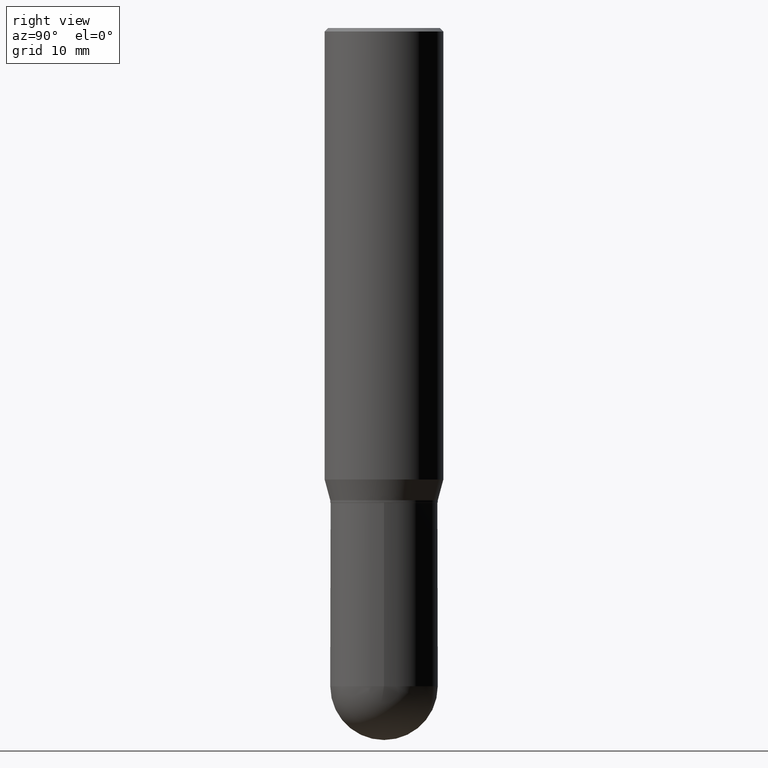
[diagram: clean part render]
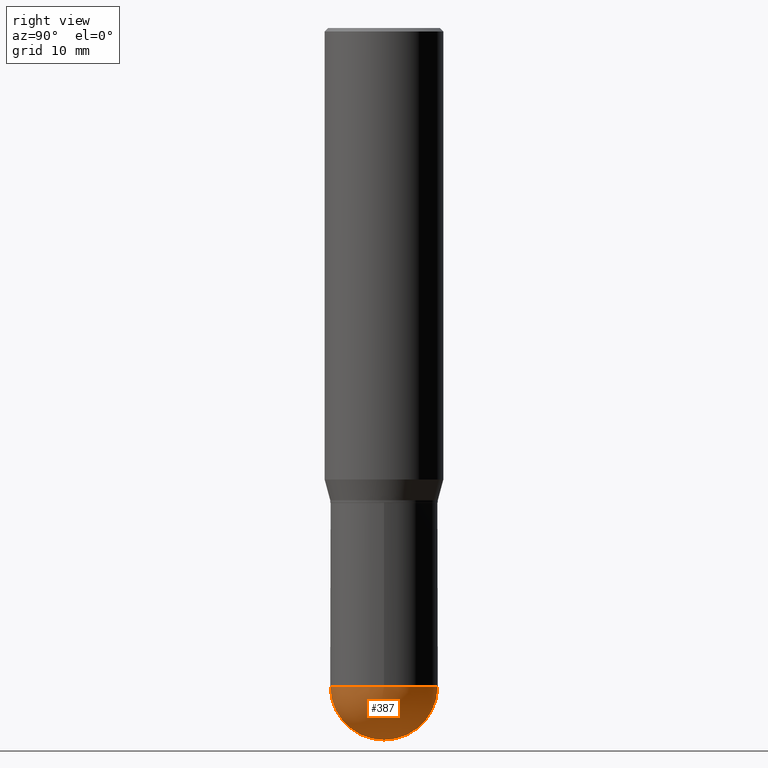
[diagram: same view with one face highlighted and labeled with its STEP entity id]
A machine part, right view. The second image highlights one B-rep face of the part: STEP entity #387.
In plain terms, the highlighted spherical surface has radius 5.7544 mm.
Its self-contained STEP definition (entity closure, byte-faithful):
#1 = CARTESIAN_POINT ( 'NONE',  ( 1.581990194629891371E-15, 0.2265499999999903147, -2.773450000000000859 ) ) ;
#2 = AXIS2_PLACEMENT_3D ( 'NONE', #154, #24, #275 ) ;
#16 = CARTESIAN_POINT ( 'NONE',  ( -1.609734567864438547E-15, -0.2265500000000096603, -2.773449999999999971 ) ) ;
#24 = DIRECTION ( 'NONE',  ( -2.445468806185136597E-29, 3.491481338843145583E-15, 1.000000000000000000 ) ) ;
#27 = CIRCLE ( 'NONE', #239, 0.2265500000000000291 ) ;
#39 = AXIS2_PLACEMENT_3D ( 'NONE', #82, #508, #164 ) ;
#40 = DIRECTION ( 'NONE',  ( 1.000000000000000000, -6.982962677686266711E-15, 0.000000000000000000 ) ) ;
#44 = DIRECTION ( 'NONE',  ( 6.982962677686265922E-15, 1.000000000000000000, -2.411695425878847213E-15 ) ) ;
#62 = ORIENTED_EDGE ( 'NONE', *, *, #198, .F. ) ;
#67 = DIRECTION ( 'NONE',  ( -1.000000000000000000, 6.982962677686265922E-15, -4.883557194083112901E-29 ) ) ;
#82 = CARTESIAN_POINT ( 'NONE',  ( 6.784390825462294501E-29, -9.680577122470524352E-15, -2.773450000000000415 ) ) ;
#115 = CARTESIAN_POINT ( 'NONE',  ( 6.784390825462294501E-29, -9.680577122470524352E-15, -2.773450000000000415 ) ) ;
#120 = ORIENTED_EDGE ( 'NONE', *, *, #248, .F. ) ;
#129 = CARTESIAN_POINT ( 'NONE',  ( 6.784390825462294501E-29, -9.680577122470524352E-15, -2.773450000000000415 ) ) ;
#154 = CARTESIAN_POINT ( 'NONE',  ( 6.782385460514168389E-29, -9.683448919214523504E-15, -2.773450000000000415 ) ) ;
#162 = VERTEX_POINT ( 'NONE', #16 ) ;
#164 = DIRECTION ( 'NONE',  ( -7.105427357601000281E-15, -1.000000000000000000, 0.000000000000000000 ) ) ;
#165 = DIRECTION ( 'NONE',  ( -2.445468806185136597E-29, 3.491481338843145583E-15, 1.000000000000000000 ) ) ;
#173 = CIRCLE ( 'NONE', #2, 0.2265500000000000291 ) ;
#175 = DIRECTION ( 'NONE',  ( 1.000000000000000000, -6.982962677686265922E-15, 4.883557194083112340E-29 ) ) ;
#198 = EDGE_CURVE ( 'NONE', #405, #385, #27, .T. ) ;
#204 = CARTESIAN_POINT ( 'NONE',  ( 0.2265500000000000291, -9.915195993080232639E-15, -2.773450000000000415 ) ) ;
#236 = CARTESIAN_POINT ( 'NONE',  ( 7.348098679644216605E-29, -1.045770003316809804E-14, -3.000000000000000444 ) ) ;
#239 = AXIS2_PLACEMENT_3D ( 'NONE', #346, #165, #40 ) ;
#248 = EDGE_CURVE ( 'NONE', #333, #162, #490, .T. ) ;
#275 = DIRECTION ( 'NONE',  ( 1.000000000000000000, -6.982962677686266711E-15, 0.000000000000000000 ) ) ;
#280 = AXIS2_PLACEMENT_3D ( 'NONE', #129, #175, #400 ) ;
#300 = SPHERICAL_SURFACE ( 'NONE', #419, 0.2265499999999999459 ) ;
#333 = VERTEX_POINT ( 'NONE', #236 ) ;
#346 = CARTESIAN_POINT ( 'NONE',  ( 6.782385460514168389E-29, -9.683448919214523504E-15, -2.773450000000000415 ) ) ;
#347 = EDGE_CURVE ( 'NONE', #162, #405, #173, .T. ) ;
#382 = ORIENTED_EDGE ( 'NONE', *, *, #445, .T. ) ;
#385 = VERTEX_POINT ( 'NONE', #1 ) ;
#387 = ADVANCED_FACE ( 'NONE', ( #396 ), #300, .T. ) ;
#396 = FACE_OUTER_BOUND ( 'NONE', #482, .T. ) ;
#400 = DIRECTION ( 'NONE',  ( 6.982962677686265133E-15, 1.000000000000000000, 0.000000000000000000 ) ) ;
#405 = VERTEX_POINT ( 'NONE', #204 ) ;
#419 = AXIS2_PLACEMENT_3D ( 'NONE', #115, #67, #44 ) ;
#442 = CIRCLE ( 'NONE', #280, 0.2265499999999999459 ) ;
#445 = EDGE_CURVE ( 'NONE', #333, #385, #442, .T. ) ;
#473 = ORIENTED_EDGE ( 'NONE', *, *, #347, .F. ) ;
#482 = EDGE_LOOP ( 'NONE', ( #120, #382, #62, #473 ) ) ;
#490 = CIRCLE ( 'NONE', #39, 0.2265499999999999459 ) ;
#508 = DIRECTION ( 'NONE',  ( -1.000000000000000000, 7.105427357601001070E-15, -4.926315508542082329E-29 ) ) ;